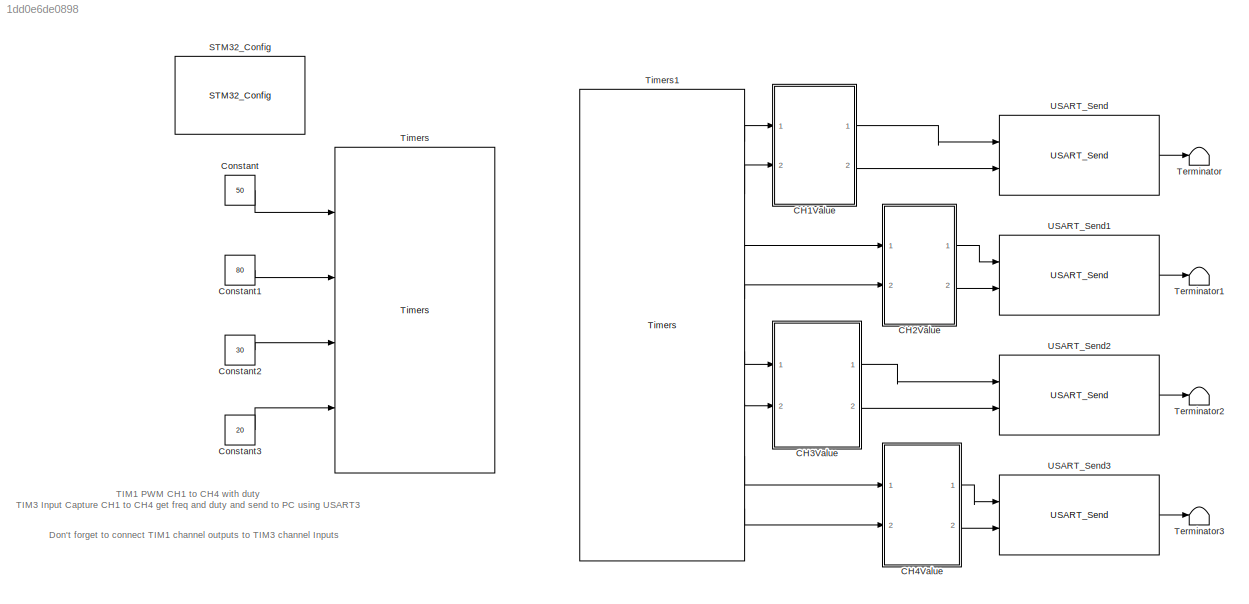
MODEL slx_1dd0e6de0898
KIND model
CONFIG AbsTol = auto
CONFIG EnableMultiTasking = on
CONFIG FixedStep = 0.5
CONFIG MaxStep = auto
CONFIG MinStep = auto
CONFIG RelTol = 1e-3
CONFIG SampleTimeConstraint = Unconstrained
CONFIG Solver = FixedStepDiscrete
CONFIG SolverName = FixedStepDiscrete
CONFIG StartTime = 0.0
CONFIG StopTime = 10.0
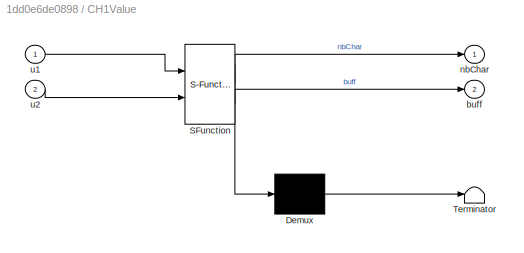
BLOCK [SubSystem] CH1Value
  ErrorFcn = Stateflow.Translate.translate
  PermitHierarchicalResolution = ExplicitOnly
  Ports = [2, 2]
  RequestExecContextInheritance = off
  SFBlockType = MATLAB Function
  TreatAsAtomicUnit = on
BLOCK [Demux] CH1Value/ Demux 
  Outputs = 1
  Ports = [1, 1]
BLOCK [S-Function] CH1Value/ SFunction 
  EnableBusSupport = on
  FunctionName = sf_sfun
  PortCounts = [2 3]
  Ports = [2, 3]
  SFcnIsStateOwnerBlock = off
  SFunctionDeploymentMode = off
  Tag = Stateflow S-Function Tim1PWM_Tim3IC 2
BLOCK [Terminator] CH1Value/ Terminator 
BLOCK [Outport] CH1Value/buff
  IconDisplay = Port number
  Port = 2
BLOCK [Outport] CH1Value/nbChar
  IconDisplay = Port number
BLOCK [Inport] CH1Value/u1
  IconDisplay = Port number
BLOCK [Inport] CH1Value/u2
  IconDisplay = Port number
  Port = 2
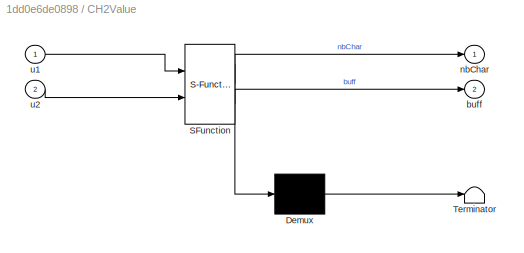
BLOCK [SubSystem] CH2Value
  ErrorFcn = Stateflow.Translate.translate
  PermitHierarchicalResolution = ExplicitOnly
  Ports = [2, 2]
  RequestExecContextInheritance = off
  SFBlockType = MATLAB Function
  TreatAsAtomicUnit = on
BLOCK [Demux] CH2Value/ Demux 
  Outputs = 1
  Ports = [1, 1]
BLOCK [S-Function] CH2Value/ SFunction 
  EnableBusSupport = on
  FunctionName = sf_sfun
  PortCounts = [2 3]
  Ports = [2, 3]
  SFcnIsStateOwnerBlock = off
  SFunctionDeploymentMode = off
  Tag = Stateflow S-Function Tim1PWM_Tim3IC 1
BLOCK [Terminator] CH2Value/ Terminator 
BLOCK [Outport] CH2Value/buff
  IconDisplay = Port number
  Port = 2
BLOCK [Outport] CH2Value/nbChar
  IconDisplay = Port number
BLOCK [Inport] CH2Value/u1
  IconDisplay = Port number
BLOCK [Inport] CH2Value/u2
  IconDisplay = Port number
  Port = 2
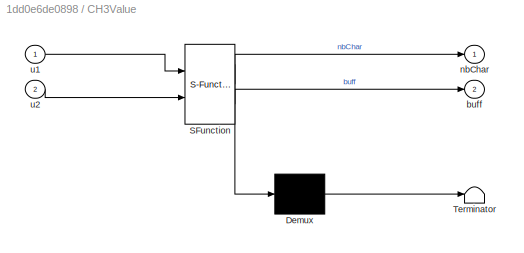
BLOCK [SubSystem] CH3Value
  ErrorFcn = Stateflow.Translate.translate
  PermitHierarchicalResolution = ExplicitOnly
  Ports = [2, 2]
  RequestExecContextInheritance = off
  SFBlockType = MATLAB Function
  TreatAsAtomicUnit = on
BLOCK [Demux] CH3Value/ Demux 
  Outputs = 1
  Ports = [1, 1]
BLOCK [S-Function] CH3Value/ SFunction 
  EnableBusSupport = on
  FunctionName = sf_sfun
  PortCounts = [2 3]
  Ports = [2, 3]
  SFcnIsStateOwnerBlock = off
  SFunctionDeploymentMode = off
  Tag = Stateflow S-Function Tim1PWM_Tim3IC 3
BLOCK [Terminator] CH3Value/ Terminator 
BLOCK [Outport] CH3Value/buff
  IconDisplay = Port number
  Port = 2
BLOCK [Outport] CH3Value/nbChar
  IconDisplay = Port number
BLOCK [Inport] CH3Value/u1
  IconDisplay = Port number
BLOCK [Inport] CH3Value/u2
  IconDisplay = Port number
  Port = 2
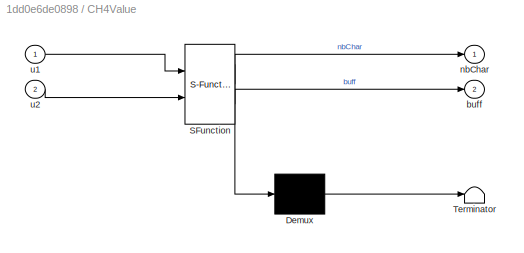
BLOCK [SubSystem] CH4Value
  ErrorFcn = Stateflow.Translate.translate
  PermitHierarchicalResolution = ExplicitOnly
  Ports = [2, 2]
  RequestExecContextInheritance = off
  SFBlockType = MATLAB Function
  TreatAsAtomicUnit = on
BLOCK [Demux] CH4Value/ Demux 
  Outputs = 1
  Ports = [1, 1]
BLOCK [S-Function] CH4Value/ SFunction 
  EnableBusSupport = on
  FunctionName = sf_sfun
  PortCounts = [2 3]
  Ports = [2, 3]
  SFcnIsStateOwnerBlock = off
  SFunctionDeploymentMode = off
  Tag = Stateflow S-Function Tim1PWM_Tim3IC 4
BLOCK [Terminator] CH4Value/ Terminator 
BLOCK [Outport] CH4Value/buff
  IconDisplay = Port number
  Port = 2
BLOCK [Outport] CH4Value/nbChar
  IconDisplay = Port number
BLOCK [Inport] CH4Value/u1
  IconDisplay = Port number
BLOCK [Inport] CH4Value/u2
  IconDisplay = Port number
  Port = 2
BLOCK [Constant] Constant
  Value = 50
BLOCK [Constant] Constant1
  Value = 80
BLOCK [Constant] Constant2
  Value = 30
BLOCK [Constant] Constant3
  Value = 20
BLOCK [Reference] STM32_Config  REF=STM32_Config_Lib/STM32_Config
  Ports = []
  Priority = 0
  SourceBlock = STM32_Config_Lib/STM32_Config
  SourceProductName = Target Support Package - STM32 Adapter
  SourceType = STM32_Config
BLOCK [Terminator] Terminator
BLOCK [Terminator] Terminator1
BLOCK [Terminator] Terminator2
BLOCK [Terminator] Terminator3
BLOCK [Reference] Timers  REF=TIMERS_Lib/Timers
  Ports = [4]
  SourceBlock = TIMERS_Lib/Timers
  SourceProductName = Target Support Package - STM32 Adapter
  SourceType = Timers
BLOCK [Reference] Timers1  REF=TIMERS_Lib/Timers
  Ports = [0, 8]
  SourceBlock = TIMERS_Lib/Timers
  SourceProductName = Target Support Package - STM32 Adapter
  SourceType = Timers
BLOCK [Reference] USART_Send  REF=USART_Lib/USART_Send
  Ports = [2, 1]
  SourceBlock = USART_Lib/USART_Send
  SourceProductName = Target Support Package - STM32 Adapter
  SourceType = USART_Send
BLOCK [Reference] USART_Send1  REF=USART_Lib/USART_Send
  Ports = [2, 1]
  SourceBlock = USART_Lib/USART_Send
  SourceProductName = Target Support Package - STM32 Adapter
  SourceType = USART_Send
BLOCK [Reference] USART_Send2  REF=USART_Lib/USART_Send
  Ports = [2, 1]
  SourceBlock = USART_Lib/USART_Send
  SourceProductName = Target Support Package - STM32 Adapter
  SourceType = USART_Send
BLOCK [Reference] USART_Send3  REF=USART_Lib/USART_Send
  Ports = [2, 1]
  SourceBlock = USART_Lib/USART_Send
  SourceProductName = Target Support Package - STM32 Adapter
  SourceType = USART_Send
ANNOTATION (root): Don't forget to connect TIM1 channel outputs to TIM3 channel Inputs
ANNOTATION (root): TIM1 PWM CH1 to CH4 with duty TIM3 Input Capture CH1 to CH4 get freq and duty and send to PC using USART3
LINE CH1Value:1 -> USART_Send:1
LINE CH1Value:2 -> USART_Send:2
LINE CH2Value:1 -> USART_Send1:1
LINE CH2Value:2 -> USART_Send1:2
LINE CH3Value:1 -> USART_Send2:1
LINE CH3Value:2 -> USART_Send2:2
LINE CH4Value:1 -> USART_Send3:1
LINE CH4Value:2 -> USART_Send3:2
LINE Constant1:1 -> Timers:2
LINE Constant2:1 -> Timers:3
LINE Constant3:1 -> Timers:4
LINE Constant:1 -> Timers:1
LINE Timers1:1 -> CH1Value:1
LINE Timers1:2 -> CH1Value:2
LINE Timers1:3 -> CH2Value:1
LINE Timers1:4 -> CH2Value:2
LINE Timers1:5 -> CH3Value:1
LINE Timers1:6 -> CH3Value:2
LINE Timers1:7 -> CH4Value:1
LINE Timers1:8 -> CH4Value:2
LINE USART_Send1:1 -> Terminator1:1
LINE USART_Send2:1 -> Terminator2:1
LINE USART_Send3:1 -> Terminator3:1
LINE USART_Send:1 -> Terminator:1
CHART CH2Value states=1 transitions=1
  STATE_LABEL 'eML_blk_kernel()'
  STATE_LABEL "SCRIPT:\nfunction [nbChar, buff] = convert(u1, u2)\nif coder.target('Sfun')\n    % Executing in MATLAB, Buff is null\n    buff = uint32(0);\n    nbChar = uint16(0);\nelse\n    coder.cinclude('stdio.h');\n    coder.cinclude('main.h');\n    coder.cinclude('getBuffPtr.h');\n    % Executing in the generated code.\n    ch2Msg = char(zeros(1,30));\n    stringSize = uint16(size(ch2Msg,2));\n    stringFormat = char(['...<+256ch>"
CHART CH1Value states=1 transitions=1
  STATE_LABEL 'eML_blk_kernel()'
  STATE_LABEL "SCRIPT:\nfunction [nbChar, buff] = convert(u1, u2)\nif coder.target('Sfun')\n    % Executing in MATLAB, Buff is null\n    buff = uint32(0);\n    nbChar = uint16(0);\nelse\n    coder.cinclude('stdio.h');\n    coder.cinclude('main.h');\n    coder.cinclude('getBuffPtr.h');\n    % Executing in the generated code.\n    ch1Msg = char(zeros(1,30));\n    stringSize = uint16(size(ch1Msg,2));\n    stringFormat = char(['...<+256ch>"
CHART CH3Value states=1 transitions=1
  STATE_LABEL 'eML_blk_kernel()'
  STATE_LABEL "SCRIPT:\nfunction [nbChar, buff] = convert(u1, u2)\nif coder.target('Sfun')\n    % Executing in MATLAB, Buff is null\n    buff = uint32(0);\n    nbChar = uint16(0);\nelse\n    coder.cinclude('stdio.h');\n    coder.cinclude('main.h');\n    coder.cinclude('getBuffPtr.h');\n    % Executing in the generated code.\n    ch3Msg = char(zeros(1,30));\n    stringSize = uint16(size(ch3Msg,2));\n    stringFormat = char(['...<+256ch>"
CHART CH4Value states=1 transitions=1
  STATE_LABEL 'eML_blk_kernel()'
  STATE_LABEL "SCRIPT:\nfunction [nbChar, buff] = convert(u1, u2)\nif coder.target('Sfun')\n    % Executing in MATLAB, Buff is null\n    buff = uint32(0);\n    nbChar = uint16(0);\nelse\n    coder.cinclude('stdio.h');\n    coder.cinclude('main.h');\n    coder.cinclude('getBuffPtr.h');\n    % Executing in the generated code.\n    ch4Msg = char(zeros(1,30));\n    stringSize = uint16(size(ch4Msg,2));\n    stringFormat = char(['...<+257ch>"
